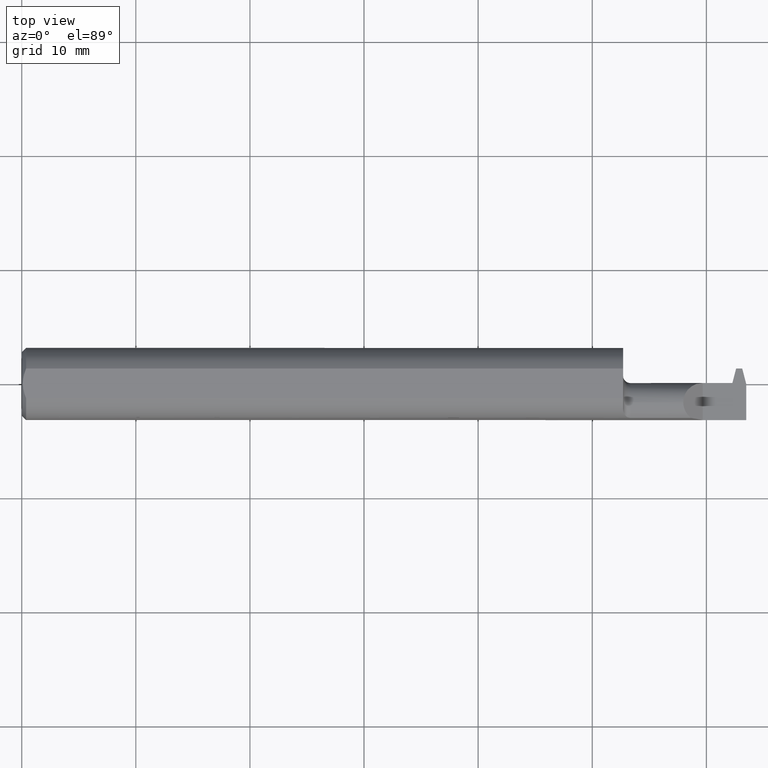
[diagram: clean part render]
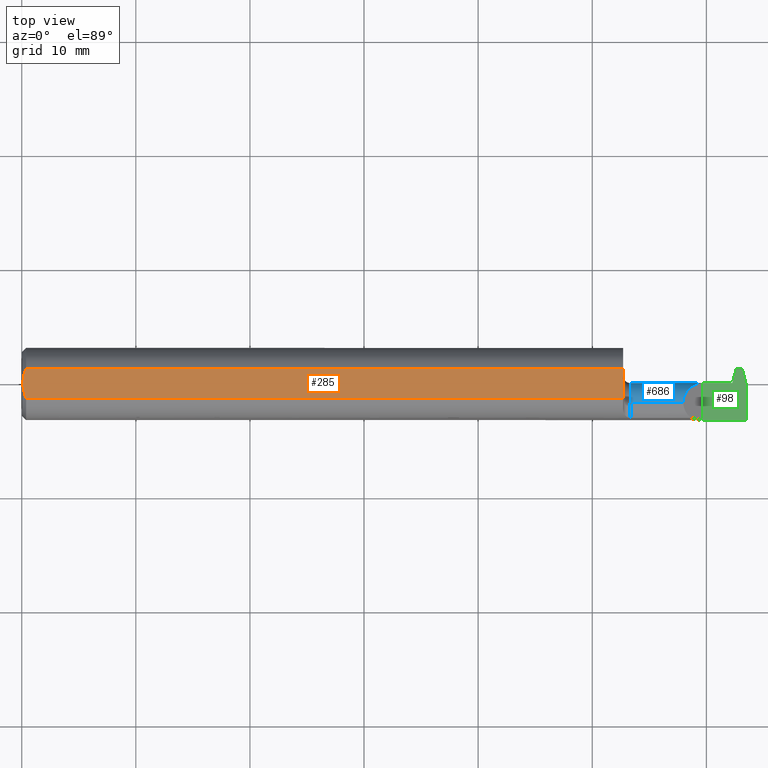
[diagram: same view with three faces highlighted in distinct colors, each labeled with its STEP entity id]
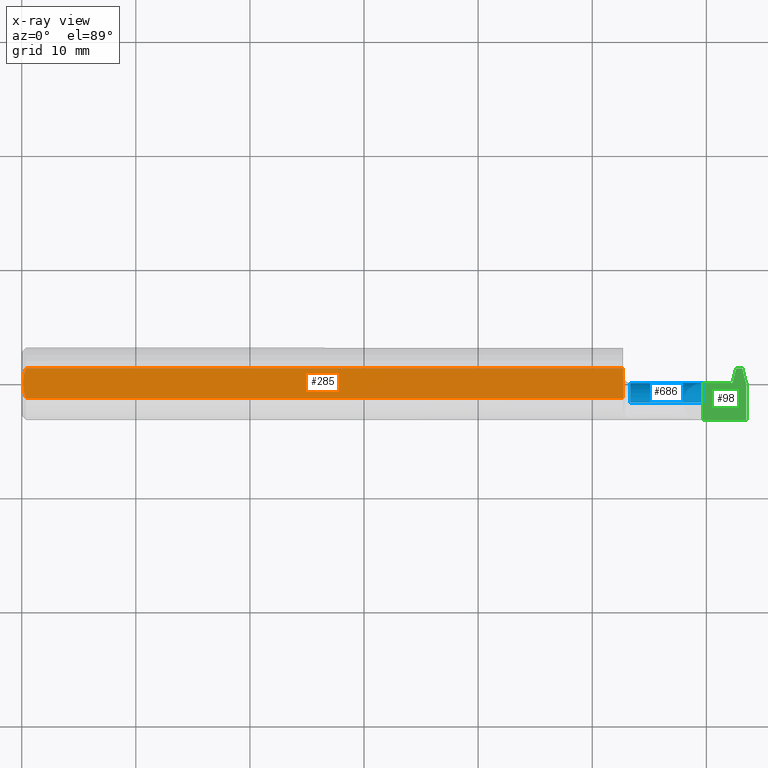
[diagram: x-ray of the same camera — body ghosted, the three highlighted faces saturated]
A machine part, top view with three faces highlighted in distinct colors.
The next image is the same camera in x-ray (body ghosted, the three faces saturated) — at least one of them is partly hidden behind the body in this view.
Their STEP definitions:

[orange] entity #285 — the highlighted planar face has unit normal (-0, 0, -1).
#23 = CARTESIAN_POINT ( 'NONE',  ( 0.003999999999982594735, -1.276290005483319770E-15, 0.1138500000000000068 ) ) ;
#45 = EDGE_CURVE ( 'NONE', #618, #645, #666, .T. ) ;
#55 = CARTESIAN_POINT ( 'NONE',  ( 0.008925039223039965899, -0.03485448893270377130, 0.1138499999999999790 ) ) ;
#56 = ORIENTED_EDGE ( 'NONE', *, *, #904, .F. ) ;
#74 = CARTESIAN_POINT ( 'NONE',  ( 0.003999999999982594735, -1.276290005483319770E-15, 0.1138500000000000068 ) ) ;
#102 = CARTESIAN_POINT ( 'NONE',  ( 0.003999999999982594735, -1.276290005483319770E-15, 0.1138500000000000068 ) ) ;
#122 = AXIS2_PLACEMENT_3D ( 'NONE', #703, #320, #333 ) ;
#146 = CARTESIAN_POINT ( 'NONE',  ( 0.005080301127456087092, -0.01778481300359936387, 0.1138500000000000206 ) ) ;
#183 = PLANE ( 'NONE',  #122 ) ;
#187 = FACE_OUTER_BOUND ( 'NONE', #721, .T. ) ;
#226 = CARTESIAN_POINT ( 'NONE',  ( 2.075000000000000178, -0.05124158467494927677, 0.1138500000000000068 ) ) ;
#261 = EDGE_CURVE ( 'NONE', #399, #723, #342, .T. ) ;
#263 = ORIENTED_EDGE ( 'NONE', *, *, #261, .T. ) ;
#267 = CARTESIAN_POINT ( 'NONE',  ( 2.500000000000000000, -0.05124158467494929065, 0.1138500000000000068 ) ) ;
#285 = ADVANCED_FACE ( 'NONE', ( #187 ), #183, .F. ) ;
#310 = ORIENTED_EDGE ( 'NONE', *, *, #639, .T. ) ;
#320 = DIRECTION ( 'NONE',  ( -0.000000000000000000, 0.000000000000000000, -1.000000000000000000 ) ) ;
#329 = VERTEX_POINT ( 'NONE', #414 ) ;
#333 = DIRECTION ( 'NONE',  ( -1.000000000000000000, 0.000000000000000000, 0.000000000000000000 ) ) ;
#342 = B_SPLINE_CURVE_WITH_KNOTS ( 'NONE', 3,
 ( #472, #709, #566, #867, #857, #23 ),
 .UNSPECIFIED., .F., .F.,
 ( 4, 2, 4 ),
 ( 0.001209797888329797611, 0.001876628042345585999, 0.002543458196361374386 ),
 .UNSPECIFIED. ) ;
#364 = B_SPLINE_CURVE_WITH_KNOTS ( 'NONE', 3,
 ( #74, #528, #146, #55, #376, #985 ),
 .UNSPECIFIED., .F., .F.,
 ( 4, 2, 4 ),
 ( 0.002543458196361374386, 0.003213918189955199643, 0.003884378183549024900 ),
 .UNSPECIFIED. ) ;
#376 = CARTESIAN_POINT ( 'NONE',  ( 0.01167347033176715718, -0.04313650299737421812, 0.1138500000000000068 ) ) ;
#399 = VERTEX_POINT ( 'NONE', #951 ) ;
#414 = CARTESIAN_POINT ( 'NONE',  ( 2.075000000000000178, 0.05124158467494929065, 0.1138500000000000068 ) ) ;
#440 = CARTESIAN_POINT ( 'NONE',  ( 2.500000000000000000, 0.05124158467494929065, 0.1138500000000000068 ) ) ;
#457 = CARTESIAN_POINT ( 'NONE',  ( 0.01499999999999969413, -0.05124158467494929065, 0.1138500000000000068 ) ) ;
#472 = CARTESIAN_POINT ( 'NONE',  ( 0.01499999999999970281, 0.05124158467494929065, 0.1138500000000000068 ) ) ;
#473 = ORIENTED_EDGE ( 'NONE', *, *, #45, .F. ) ;
#522 = DIRECTION ( 'NONE',  ( 1.000000000000000000, 0.000000000000000000, 0.000000000000000000 ) ) ;
#525 = VECTOR ( 'NONE', #873, 39.37007874015748143 ) ;
#528 = CARTESIAN_POINT ( 'NONE',  ( 0.004000000000000225597, -0.008848600531297691474, 0.1138500000000000068 ) ) ;
#566 = CARTESIAN_POINT ( 'NONE',  ( 0.008866562462787448695, 0.03466860267591459488, 0.1138500000000000206 ) ) ;
#570 = ORIENTED_EDGE ( 'NONE', *, *, #574, .F. ) ;
#574 = EDGE_CURVE ( 'NONE', #399, #329, #757, .T. ) ;
#586 = CARTESIAN_POINT ( 'NONE',  ( 2.075000000000000178, 0.1000000000000000056, 0.1138500000000000068 ) ) ;
#618 = VERTEX_POINT ( 'NONE', #226 ) ;
#639 = EDGE_CURVE ( 'NONE', #723, #645, #364, .T. ) ;
#645 = VERTEX_POINT ( 'NONE', #457 ) ;
#652 = VECTOR ( 'NONE', #667, 39.37007874015748143 ) ;
#666 = LINE ( 'NONE', #267, #525 ) ;
#667 = DIRECTION ( 'NONE',  ( 0.000000000000000000, -1.000000000000000000, 0.000000000000000000 ) ) ;
#703 = CARTESIAN_POINT ( 'NONE',  ( 0.000000000000000000, 0.1000000000000000056, 0.1138500000000000068 ) ) ;
#709 = CARTESIAN_POINT ( 'NONE',  ( 0.01167190377471843954, 0.04313268608482607319, 0.1138500000000000068 ) ) ;
#721 = EDGE_LOOP ( 'NONE', ( #56, #570, #263, #310, #473 ) ) ;
#723 = VERTEX_POINT ( 'NONE', #102 ) ;
#757 = LINE ( 'NONE', #440, #774 ) ;
#774 = VECTOR ( 'NONE', #522, 39.37007874015748143 ) ;
#811 = LINE ( 'NONE', #586, #652 ) ;
#857 = CARTESIAN_POINT ( 'NONE',  ( 0.003999999999999733803, 0.008800694614867364887, 0.1138500000000000068 ) ) ;
#867 = CARTESIAN_POINT ( 'NONE',  ( 0.005030588787081553478, 0.01748826716933455164, 0.1138499999999999790 ) ) ;
#873 = DIRECTION ( 'NONE',  ( -1.000000000000000000, -0.000000000000000000, -0.000000000000000000 ) ) ;
#904 = EDGE_CURVE ( 'NONE', #329, #618, #811, .T. ) ;
#951 = CARTESIAN_POINT ( 'NONE',  ( 0.01499999999999970281, 0.05124158467494929065, 0.1138500000000000068 ) ) ;
#985 = CARTESIAN_POINT ( 'NONE',  ( 0.01499999999999969413, -0.05124158467494929065, 0.1138500000000000068 ) ) ;

[blue] entity #686 — the highlighted cylindrical surface (edge-blend (fillet) strip) has radius 1.7145 mm, axis along (-1, -0, -0).
#8 = CARTESIAN_POINT ( 'NONE',  ( 2.450000000000000178, -0.05595768985601804607, -0.06697625796091642714 ) ) ;
#16 = ORIENTED_EDGE ( 'NONE', *, *, #336, .T. ) ;
#17 = DIRECTION ( 'NONE',  ( 0.000000000000000000, 0.000000000000000000, 1.000000000000000000 ) ) ;
#19 = ORIENTED_EDGE ( 'NONE', *, *, #459, .T. ) ;
#24 = VERTEX_POINT ( 'NONE', #125 ) ;
#34 = VECTOR ( 'NONE', #80, 39.37007874015748143 ) ;
#51 = DIRECTION ( 'NONE',  ( 1.000000000000000000, 0.000000000000000000, 0.000000000000000000 ) ) ;
#52 = DIRECTION ( 'NONE',  ( 0.000000000000000000, 1.770642218115725568E-15, -1.000000000000000000 ) ) ;
#66 = LINE ( 'NONE', #373, #138 ) ;
#70 = EDGE_CURVE ( 'NONE', #88, #180, #729, .T. ) ;
#71 = EDGE_CURVE ( 'NONE', #188, #24, #591, .T. ) ;
#80 = DIRECTION ( 'NONE',  ( -1.000000000000000000, -0.000000000000000000, -0.000000000000000000 ) ) ;
#85 = CARTESIAN_POINT ( 'NONE',  ( 2.450000000000000178, -0.06435000000000003217, 0.000000000000000000 ) ) ;
#86 = CARTESIAN_POINT ( 'NONE',  ( 2.100000000000000089, -0.06435000000000003217, 0.06750000000000001832 ) ) ;
#88 = VERTEX_POINT ( 'NONE', #535 ) ;
#94 = VERTEX_POINT ( 'NONE', #299 ) ;
#97 = VERTEX_POINT ( 'NONE', #828 ) ;
#113 = DIRECTION ( 'NONE',  ( 1.000000000000000000, 0.000000000000000000, 0.000000000000000000 ) ) ;
#125 = CARTESIAN_POINT ( 'NONE',  ( 2.442069120782206060, 0.003149999999999970966, 0.000000000000000000 ) ) ;
#130 = VERTEX_POINT ( 'NONE', #293 ) ;
#131 = DIRECTION ( 'NONE',  ( -1.000000000000000000, -0.000000000000000000, -0.000000000000000000 ) ) ;
#136 = CARTESIAN_POINT ( 'NONE',  ( 2.450000000000000178, -0.002552249386265836081, -0.02715304806246837330 ) ) ;
#137 = EDGE_CURVE ( 'NONE', #858, #188, #66, .T. ) ;
#138 = VECTOR ( 'NONE', #675, 39.37007874015748143 ) ;
#145 = EDGE_CURVE ( 'NONE', #810, #130, #211, .T. ) ;
#150 = CARTESIAN_POINT ( 'NONE',  ( 2.310505889776659494, 0.003091416068753647349, 0.03959411022334007740 ) ) ;
#159 = CARTESIAN_POINT ( 'NONE',  ( 2.436366871395940326, -0.002552249386265828708, -0.02715304806246833860 ) ) ;
#166 = CARTESIAN_POINT ( 'NONE',  ( 2.075000000000000178, -0.06435000000000003217, -0.06750000000000001832 ) ) ;
#173 = VERTEX_POINT ( 'NONE', #911 ) ;
#180 = VERTEX_POINT ( 'NONE', #8 ) ;
#188 = VERTEX_POINT ( 'NONE', #159 ) ;
#190 = CARTESIAN_POINT ( 'NONE',  ( 2.450000000000000178, -0.06435000000000003217, 0.000000000000000000 ) ) ;
#197 = CARTESIAN_POINT ( 'NONE',  ( 2.100000000000000089, -0.06435000000000003217, 0.000000000000000000 ) ) ;
#201 = DIRECTION ( 'NONE',  ( -1.000000000000000000, -0.000000000000000000, -0.000000000000000000 ) ) ;
#211 =( BOUNDED_CURVE ( )  B_SPLINE_CURVE ( 3, ( #670, #150, #817, #529 ),
 .UNSPECIFIED., .F., .T. ) 
 B_SPLINE_CURVE_WITH_KNOTS ( ( 4, 4 ),
 ( 4.713870462408088713, 6.283185307179586232 ),
 .UNSPECIFIED. ) 
 CURVE ( )  GEOMETRIC_REPRESENTATION_ITEM ( )  RATIONAL_B_SPLINE_CURVE ( ( 1.000000000000000000, 0.8050869134249070136, 0.8050869134249070136, 1.000000000000000000 ) ) 
 REPRESENTATION_ITEM ( '' )  );
#218 = EDGE_CURVE ( 'NONE', #97, #94, #766, .T. ) ;
#227 = CARTESIAN_POINT ( 'NONE',  ( 2.438170679457906775, 0.001221809097012123728, -0.01856365049595226635 ) ) ;
#236 = VERTEX_POINT ( 'NONE', #86 ) ;
#242 = CARTESIAN_POINT ( 'NONE',  ( 2.075000000000000178, -0.06435000000000003217, 0.000000000000000000 ) ) ;
#259 = DIRECTION ( 'NONE',  ( -1.000000000000000000, -0.000000000000000000, -0.000000000000000000 ) ) ;
#262 = ORIENTED_EDGE ( 'NONE', *, *, #749, .F. ) ;
#268 = VECTOR ( 'NONE', #513, 39.37007874015748143 ) ;
#273 = CARTESIAN_POINT ( 'NONE',  ( 2.446947195464070024, -0.06435000000000003217, 0.000000000000000000 ) ) ;
#275 = CARTESIAN_POINT ( 'NONE',  ( 2.075000000000000178, -0.05595768985601794199, -0.06697625796091639938 ) ) ;
#283 = CARTESIAN_POINT ( 'NONE',  ( 2.446947195464070024, -0.004283243744551786490, -0.03079342126085652526 ) ) ;
#293 = CARTESIAN_POINT ( 'NONE',  ( 2.282599999999999962, -0.06435000000000003217, 0.06750000000000001832 ) ) ;
#299 = CARTESIAN_POINT ( 'NONE',  ( 2.100000000000000089, -0.06435000000000003217, -0.06750000000000001832 ) ) ;
#307 = DIRECTION ( 'NONE',  ( -1.000000000000000000, -0.000000000000000000, -0.000000000000000000 ) ) ;
#313 = ORIENTED_EDGE ( 'NONE', *, *, #704, .T. ) ;
#336 = EDGE_CURVE ( 'NONE', #180, #97, #719, .T. ) ;
#344 = VERTEX_POINT ( 'NONE', #800 ) ;
#345 = DIRECTION ( 'NONE',  ( 0.000000000000000000, 0.000000000000000000, -1.000000000000000000 ) ) ;
#347 = DIRECTION ( 'NONE',  ( 0.000000000000000000, 0.000000000000000000, 1.000000000000000000 ) ) ;
#348 = AXIS2_PLACEMENT_3D ( 'NONE', #85, #476, #642 ) ;
#350 = CIRCLE ( 'NONE', #969, 0.06750000000000001832 ) ;
#366 = DIRECTION ( 'NONE',  ( 0.000000000000000000, 0.000000000000000000, 1.000000000000000000 ) ) ;
#371 = CARTESIAN_POINT ( 'NONE',  ( 2.350000000000000089, -0.06435000000000003217, 0.000000000000000000 ) ) ;
#373 = CARTESIAN_POINT ( 'NONE',  ( 2.075000000000000178, -0.002552249386265894628, -0.02715304806246847738 ) ) ;
#386 = CARTESIAN_POINT ( 'NONE',  ( 2.442069120782206060, 0.003149999999999970966, 0.000000000000000000 ) ) ;
#394 = FACE_OUTER_BOUND ( 'NONE', #829, .T. ) ;
#413 = CARTESIAN_POINT ( 'NONE',  ( 2.075000000000000178, -0.06435000000000003217, 0.06750000000000001832 ) ) ;
#418 = DIRECTION ( 'NONE',  ( -1.000000000000000000, -0.000000000000000000, -0.000000000000000000 ) ) ;
#425 = CARTESIAN_POINT ( 'NONE',  ( 2.350000000000000089, 0.003149925925885245243, 9.999999999961100661E-05 ) ) ;
#428 = CIRCLE ( 'NONE', #348, 0.06750000000000001832 ) ;
#438 = ORIENTED_EDGE ( 'NONE', *, *, #137, .F. ) ;
#443 = AXIS2_PLACEMENT_3D ( 'NONE', #371, #131, #366 ) ;
#458 = CARTESIAN_POINT ( 'NONE',  ( 2.440098870360894789, 0.003149999999999981374, -0.009381965038885680189 ) ) ;
#459 = EDGE_CURVE ( 'NONE', #640, #88, #608, .T. ) ;
#462 = CARTESIAN_POINT ( 'NONE',  ( 2.075000000000000178, -0.004283243744551786490, -0.03079342126085652526 ) ) ;
#476 = DIRECTION ( 'NONE',  ( -1.000000000000000000, -0.000000000000000000, -0.000000000000000000 ) ) ;
#502 = ORIENTED_EDGE ( 'NONE', *, *, #787, .T. ) ;
#508 = CIRCLE ( 'NONE', #443, 0.06750000000000001832 ) ;
#513 = DIRECTION ( 'NONE',  ( 1.000000000000000000, 0.000000000000000000, 0.000000000000000000 ) ) ;
#529 = CARTESIAN_POINT ( 'NONE',  ( 2.282599999999999962, -0.06435000000000003217, 0.06750000000000001832 ) ) ;
#535 = CARTESIAN_POINT ( 'NONE',  ( 2.446947195464070024, -0.05595768985601794199, -0.06697625796091639938 ) ) ;
#536 = ORIENTED_EDGE ( 'NONE', *, *, #70, .T. ) ;
#585 = CARTESIAN_POINT ( 'NONE',  ( 2.436366871395940326, -0.002552249386265828708, -0.02715304806246833860 ) ) ;
#591 =( BOUNDED_CURVE ( )  B_SPLINE_CURVE ( 3, ( #585, #227, #458, #386 ),
 .UNSPECIFIED., .F., .F. ) 
 B_SPLINE_CURVE_WITH_KNOTS ( ( 4, 4 ),
 ( 1.156804228221857134, 1.570796326794912989 ),
 .UNSPECIFIED. ) 
 CURVE ( )  GEOMETRIC_REPRESENTATION_ITEM ( )  RATIONAL_B_SPLINE_CURVE ( ( 1.000000000000000000, 0.9857684695413670983, 0.9857684695413670983, 1.000000000000000000 ) ) 
 REPRESENTATION_ITEM ( '' )  );
#593 = CARTESIAN_POINT ( 'NONE',  ( 2.075000000000000178, 0.003149999999999980507, -3.367667473011537583E-17 ) ) ;
#599 = ORIENTED_EDGE ( 'NONE', *, *, #218, .T. ) ;
#600 = LINE ( 'NONE', #593, #268 ) ;
#606 = VECTOR ( 'NONE', #418, 39.37007874015748143 ) ;
#608 = CIRCLE ( 'NONE', #730, 0.06750000000000001832 ) ;
#621 = ORIENTED_EDGE ( 'NONE', *, *, #887, .T. ) ;
#624 = AXIS2_PLACEMENT_3D ( 'NONE', #190, #883, #347 ) ;
#625 = LINE ( 'NONE', #462, #681 ) ;
#640 = VERTEX_POINT ( 'NONE', #283 ) ;
#642 = DIRECTION ( 'NONE',  ( 0.000000000000000000, 0.000000000000000000, 1.000000000000000000 ) ) ;
#643 = VECTOR ( 'NONE', #113, 39.37007874015748143 ) ;
#669 = EDGE_CURVE ( 'NONE', #858, #173, #428, .T. ) ;
#670 = CARTESIAN_POINT ( 'NONE',  ( 2.350000000000000089, 0.003149925925885245243, 9.999999999961100661E-05 ) ) ;
#675 = DIRECTION ( 'NONE',  ( -1.000000000000000000, -0.000000000000000000, -0.000000000000000000 ) ) ;
#681 = VECTOR ( 'NONE', #259, 39.37007874015748143 ) ;
#686 = ADVANCED_FACE ( 'NONE', ( #394 ), #696, .T. ) ;
#696 = CYLINDRICAL_SURFACE ( 'NONE', #804, 0.06750000000000001832 ) ;
#704 = EDGE_CURVE ( 'NONE', #173, #640, #625, .T. ) ;
#719 = CIRCLE ( 'NONE', #624, 0.06750000000000001832 ) ;
#729 = LINE ( 'NONE', #275, #643 ) ;
#730 = AXIS2_PLACEMENT_3D ( 'NONE', #273, #201, #52 ) ;
#734 = ORIENTED_EDGE ( 'NONE', *, *, #888, .T. ) ;
#749 = EDGE_CURVE ( 'NONE', #130, #236, #784, .T. ) ;
#766 = LINE ( 'NONE', #166, #606 ) ;
#784 = LINE ( 'NONE', #413, #34 ) ;
#787 = EDGE_CURVE ( 'NONE', #94, #236, #350, .T. ) ;
#800 = CARTESIAN_POINT ( 'NONE',  ( 2.350000000000000089, 0.003149999999999971833, -3.367667473011536351E-17 ) ) ;
#804 = AXIS2_PLACEMENT_3D ( 'NONE', #242, #307, #17 ) ;
#810 = VERTEX_POINT ( 'NONE', #425 ) ;
#817 = CARTESIAN_POINT ( 'NONE',  ( 2.282599999999999962, -0.02485584643600085783, 0.06749999999999999056 ) ) ;
#828 = CARTESIAN_POINT ( 'NONE',  ( 2.450000000000000178, -0.06435000000000004605, -0.06750000000000001832 ) ) ;
#829 = EDGE_LOOP ( 'NONE', ( #16, #599, #502, #262, #947, #734, #621, #866, #438, #957, #313, #19, #536 ) ) ;
#858 = VERTEX_POINT ( 'NONE', #136 ) ;
#866 = ORIENTED_EDGE ( 'NONE', *, *, #71, .F. ) ;
#883 = DIRECTION ( 'NONE',  ( -1.000000000000000000, -0.000000000000000000, -0.000000000000000000 ) ) ;
#887 = EDGE_CURVE ( 'NONE', #344, #24, #600, .T. ) ;
#888 = EDGE_CURVE ( 'NONE', #810, #344, #508, .T. ) ;
#911 = CARTESIAN_POINT ( 'NONE',  ( 2.450000000000000178, -0.004283243744551730979, -0.03079342126085642811 ) ) ;
#947 = ORIENTED_EDGE ( 'NONE', *, *, #145, .F. ) ;
#957 = ORIENTED_EDGE ( 'NONE', *, *, #669, .T. ) ;
#969 = AXIS2_PLACEMENT_3D ( 'NONE', #197, #51, #345 ) ;

[green] entity #98 — the highlighted planar face has unit normal (-0, 0, -1).
#24 = VERTEX_POINT ( 'NONE', #125 ) ;
#35 = VECTOR ( 'NONE', #96, 39.37007874015748143 ) ;
#46 = VECTOR ( 'NONE', #602, 39.37007874015748143 ) ;
#54 = LINE ( 'NONE', #920, #256 ) ;
#57 = ORIENTED_EDGE ( 'NONE', *, *, #579, .F. ) ;
#82 = VERTEX_POINT ( 'NONE', #880 ) ;
#96 = DIRECTION ( 'NONE',  ( 0.2503800040544323924, 0.9681476403781100748, -0.000000000000000000 ) ) ;
#98 = ADVANCED_FACE ( 'NONE', ( #223 ), #763, .F. ) ;
#101 = VERTEX_POINT ( 'NONE', #147 ) ;
#103 = CARTESIAN_POINT ( 'NONE',  ( 2.465568958685582679, 0.05535000000000005194, 0.000000000000000000 ) ) ;
#107 = VECTOR ( 'NONE', #906, 39.37007874015748854 ) ;
#111 = VECTOR ( 'NONE', #478, 39.37007874015748143 ) ;
#117 = DIRECTION ( 'NONE',  ( -0.000000000000000000, 1.000000000000000000, -0.000000000000000000 ) ) ;
#125 = CARTESIAN_POINT ( 'NONE',  ( 2.442069120782206060, 0.003149999999999970966, 0.000000000000000000 ) ) ;
#140 = VECTOR ( 'NONE', #117, 39.37007874015748143 ) ;
#147 = CARTESIAN_POINT ( 'NONE',  ( 2.464999999999999858, 0.05314999999999990565, -3.367667473011537583E-17 ) ) ;
#152 = EDGE_CURVE ( 'NONE', #24, #304, #918, .T. ) ;
#184 = EDGE_CURVE ( 'NONE', #980, #101, #233, .T. ) ;
#205 = ORIENTED_EDGE ( 'NONE', *, *, #887, .F. ) ;
#213 = DIRECTION ( 'NONE',  ( -1.000000000000000000, 0.000000000000000000, 0.000000000000000000 ) ) ;
#223 = FACE_OUTER_BOUND ( 'NONE', #851, .T. ) ;
#232 = LINE ( 'NONE', #601, #107 ) ;
#233 = LINE ( 'NONE', #540, #861 ) ;
#241 = CARTESIAN_POINT ( 'NONE',  ( 2.486000000000000654, 0.05314999999999992647, 0.000000000000000000 ) ) ;
#243 = CARTESIAN_POINT ( 'NONE',  ( 2.500000000000000000, 0.1499999999999999944, -3.367667473011537583E-17 ) ) ;
#244 = VERTEX_POINT ( 'NONE', #785 ) ;
#255 = LINE ( 'NONE', #243, #111 ) ;
#256 = VECTOR ( 'NONE', #398, 39.37007874015748143 ) ;
#268 = VECTOR ( 'NONE', #513, 39.37007874015748143 ) ;
#277 = EDGE_CURVE ( 'NONE', #82, #627, #255, .T. ) ;
#304 = VERTEX_POINT ( 'NONE', #630 ) ;
#321 = EDGE_CURVE ( 'NONE', #304, #101, #327, .T. ) ;
#327 = LINE ( 'NONE', #103, #35 ) ;
#344 = VERTEX_POINT ( 'NONE', #800 ) ;
#358 = EDGE_CURVE ( 'NONE', #244, #344, #423, .T. ) ;
#397 = ORIENTED_EDGE ( 'NONE', *, *, #184, .T. ) ;
#398 = DIRECTION ( 'NONE',  ( -1.000000000000000000, -0.000000000000000000, -0.000000000000000000 ) ) ;
#406 = ORIENTED_EDGE ( 'NONE', *, *, #152, .F. ) ;
#423 = LINE ( 'NONE', #889, #140 ) ;
#478 = DIRECTION ( 'NONE',  ( -0.000000000000000000, 1.000000000000000000, -0.000000000000000000 ) ) ;
#513 = DIRECTION ( 'NONE',  ( 1.000000000000000000, 0.000000000000000000, 0.000000000000000000 ) ) ;
#519 = DIRECTION ( 'NONE',  ( -0.000000000000000000, 0.000000000000000000, -1.000000000000000000 ) ) ;
#520 = ORIENTED_EDGE ( 'NONE', *, *, #321, .F. ) ;
#523 = CARTESIAN_POINT ( 'NONE',  ( 2.452069120782205847, 0.003149999999999971833, 0.000000000000000000 ) ) ;
#540 = CARTESIAN_POINT ( 'NONE',  ( 2.350000000000000089, 0.05314999999999979463, -3.367667473011537583E-17 ) ) ;
#579 = EDGE_CURVE ( 'NONE', #980, #627, #232, .T. ) ;
#593 = CARTESIAN_POINT ( 'NONE',  ( 2.075000000000000178, 0.003149999999999980507, -3.367667473011537583E-17 ) ) ;
#600 = LINE ( 'NONE', #593, #268 ) ;
#601 = CARTESIAN_POINT ( 'NONE',  ( 2.485431041314417833, 0.05535000000000005194, 0.000000000000000000 ) ) ;
#602 = DIRECTION ( 'NONE',  ( 1.000000000000000000, 1.067128122525114190E-16, -0.000000000000000000 ) ) ;
#627 = VERTEX_POINT ( 'NONE', #738 ) ;
#630 = CARTESIAN_POINT ( 'NONE',  ( 2.452069120782205847, 0.003149999999999971833, 0.000000000000000000 ) ) ;
#711 = ORIENTED_EDGE ( 'NONE', *, *, #277, .T. ) ;
#738 = CARTESIAN_POINT ( 'NONE',  ( 2.500000000000000000, -0.0009839833285807519231, 0.000000000000000000 ) ) ;
#759 = ORIENTED_EDGE ( 'NONE', *, *, #958, .F. ) ;
#763 = PLANE ( 'NONE',  #973 ) ;
#785 = CARTESIAN_POINT ( 'NONE',  ( 2.350000000000000089, -0.1248499999999999888, -3.367667473011536351E-17 ) ) ;
#800 = CARTESIAN_POINT ( 'NONE',  ( 2.350000000000000089, 0.003149999999999971833, -3.367667473011536351E-17 ) ) ;
#808 = ORIENTED_EDGE ( 'NONE', *, *, #358, .F. ) ;
#832 = CARTESIAN_POINT ( 'NONE',  ( 2.350000000000000089, 0.1499999999999999944, -3.367667473011537583E-17 ) ) ;
#838 = DIRECTION ( 'NONE',  ( -1.000000000000000000, -9.688253115334545489E-16, 0.000000000000000000 ) ) ;
#851 = EDGE_LOOP ( 'NONE', ( #397, #520, #406, #205, #808, #759, #711, #57 ) ) ;
#861 = VECTOR ( 'NONE', #838, 39.37007874015748143 ) ;
#880 = CARTESIAN_POINT ( 'NONE',  ( 2.500000000000000000, -0.1248499999999999471, -3.367667473011537583E-17 ) ) ;
#887 = EDGE_CURVE ( 'NONE', #344, #24, #600, .T. ) ;
#889 = CARTESIAN_POINT ( 'NONE',  ( 2.350000000000000089, 0.1499999999999999944, -3.367667473011537583E-17 ) ) ;
#906 = DIRECTION ( 'NONE',  ( 0.2503800040544350014, -0.9681476403781094087, 0.000000000000000000 ) ) ;
#918 = LINE ( 'NONE', #523, #46 ) ;
#920 = CARTESIAN_POINT ( 'NONE',  ( 2.500000000000000000, -0.1248500000000000026, -3.367667473011537583E-17 ) ) ;
#958 = EDGE_CURVE ( 'NONE', #82, #244, #54, .T. ) ;
#973 = AXIS2_PLACEMENT_3D ( 'NONE', #832, #519, #213 ) ;
#980 = VERTEX_POINT ( 'NONE', #241 ) ;